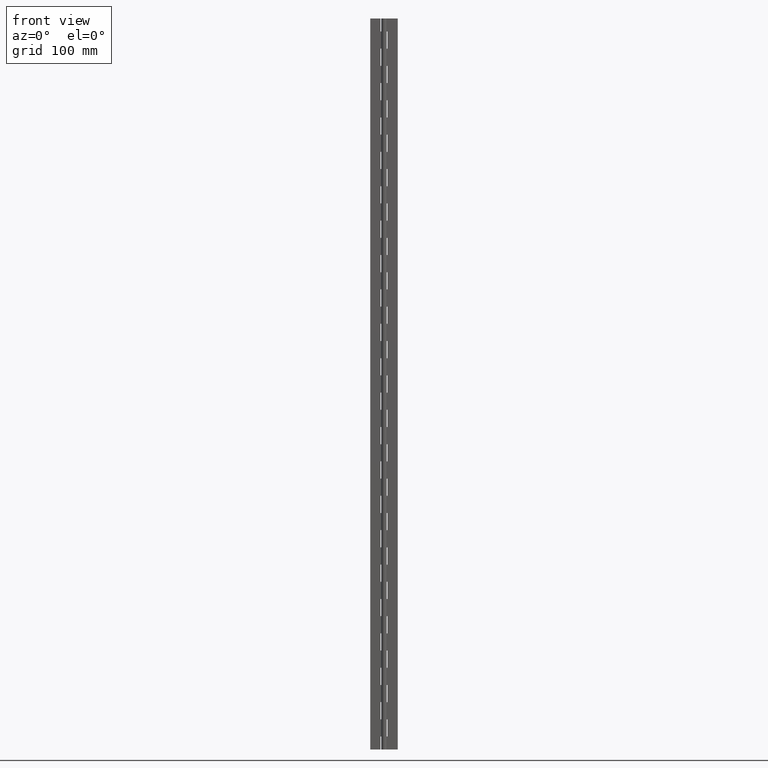
[diagram: clean part render]
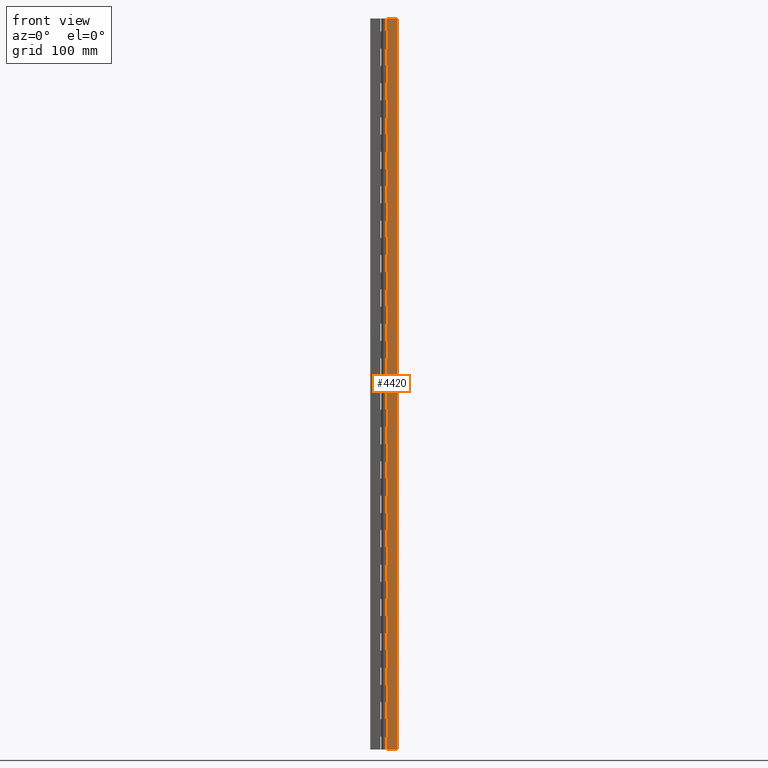
[diagram: same view with one face highlighted and labeled with its STEP entity id]
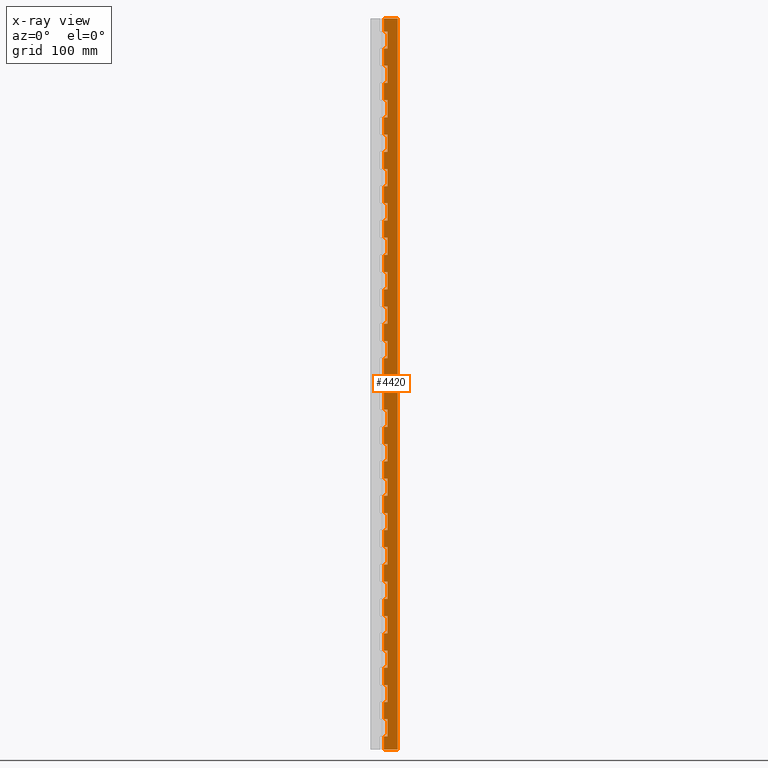
[diagram: x-ray of the same camera — body ghosted, the highlighted face saturated]
A machine part, front view. The second image highlights one B-rep face of the part: STEP entity #4420.
The next image is the same camera in x-ray: the body ghosted, the highlighted face saturated — about 0% of this face is hidden behind the body in this view.
In plain terms, the highlighted face is a freeform B-spline surface patch.
Its self-contained STEP definition (entity closure, byte-faithful):
#330=CARTESIAN_POINT('',(0.0,1.750000000000000,15.000022000000049));
#331=VERTEX_POINT('',#330);
#351=CARTESIAN_POINT('',(4.0,1.750000000000030,15.000022000000049));
#352=VERTEX_POINT('',#351);
#353=CARTESIAN_POINT('',(0.0,1.750000000000000,15.000022000000049));
#354=CARTESIAN_POINT('',(4.0,1.750000000000030,15.000022000000049));
#355=QUASI_UNIFORM_CURVE('',1,(#353,#354),.UNSPECIFIED.,.F.,.U.);
#356=EDGE_CURVE('',#331,#352,#355,.T.);
#378=CARTESIAN_POINT('',(4.0,1.750000000000030,35.000022000000087));
#379=VERTEX_POINT('',#378);
#380=CARTESIAN_POINT('',(4.0,1.750000000000030,15.000022000000049));
#381=CARTESIAN_POINT('',(4.0,1.750000000000030,35.000022000000087));
#382=QUASI_UNIFORM_CURVE('',1,(#380,#381),.UNSPECIFIED.,.F.,.U.);
#383=EDGE_CURVE('',#352,#379,#382,.T.);
#435=CARTESIAN_POINT('',(0.0,1.750000000000000,35.000022000000087));
#436=VERTEX_POINT('',#435);
#437=CARTESIAN_POINT('',(4.0,1.750000000000030,35.000022000000087));
#438=CARTESIAN_POINT('',(0.0,1.750000000000000,35.000022000000087));
#439=QUASI_UNIFORM_CURVE('',1,(#437,#438),.UNSPECIFIED.,.F.,.U.);
#440=EDGE_CURVE('',#379,#436,#439,.T.);
#506=CARTESIAN_POINT('',(0.0,1.750000000000000,55.000022000000101));
#507=VERTEX_POINT('',#506);
#527=CARTESIAN_POINT('',(4.0,1.750000000000030,55.000022000000101));
#528=VERTEX_POINT('',#527);
#529=CARTESIAN_POINT('',(0.0,1.750000000000000,55.000022000000101));
#530=CARTESIAN_POINT('',(4.0,1.750000000000030,55.000022000000101));
#531=QUASI_UNIFORM_CURVE('',1,(#529,#530),.UNSPECIFIED.,.F.,.U.);
#532=EDGE_CURVE('',#507,#528,#531,.T.);
#554=CARTESIAN_POINT('',(4.0,1.750000000000030,75.000022000000101));
#555=VERTEX_POINT('',#554);
#556=CARTESIAN_POINT('',(4.0,1.750000000000030,55.000022000000101));
#557=CARTESIAN_POINT('',(4.0,1.750000000000030,75.000022000000101));
#558=QUASI_UNIFORM_CURVE('',1,(#556,#557),.UNSPECIFIED.,.F.,.U.);
#559=EDGE_CURVE('',#528,#555,#558,.T.);
#611=CARTESIAN_POINT('',(0.0,1.750000000000000,75.000022000000101));
#612=VERTEX_POINT('',#611);
#613=CARTESIAN_POINT('',(4.0,1.750000000000030,75.000022000000101));
#614=CARTESIAN_POINT('',(0.0,1.750000000000000,75.000022000000101));
#615=QUASI_UNIFORM_CURVE('',1,(#613,#614),.UNSPECIFIED.,.F.,.U.);
#616=EDGE_CURVE('',#555,#612,#615,.T.);
#682=CARTESIAN_POINT('',(0.0,1.750000000000000,95.000022000000101));
#683=VERTEX_POINT('',#682);
#703=CARTESIAN_POINT('',(4.0,1.750000000000030,95.000022000000101));
#704=VERTEX_POINT('',#703);
#705=CARTESIAN_POINT('',(0.0,1.750000000000000,95.000022000000101));
#706=CARTESIAN_POINT('',(4.0,1.750000000000030,95.000022000000101));
#707=QUASI_UNIFORM_CURVE('',1,(#705,#706),.UNSPECIFIED.,.F.,.U.);
#708=EDGE_CURVE('',#683,#704,#707,.T.);
#730=CARTESIAN_POINT('',(4.0,1.750000000000030,115.000022000000200));
#731=VERTEX_POINT('',#730);
#732=CARTESIAN_POINT('',(4.0,1.750000000000030,95.000022000000101));
#733=CARTESIAN_POINT('',(4.0,1.750000000000030,115.000022000000200));
#734=QUASI_UNIFORM_CURVE('',1,(#732,#733),.UNSPECIFIED.,.F.,.U.);
#735=EDGE_CURVE('',#704,#731,#734,.T.);
#787=CARTESIAN_POINT('',(0.0,1.750000000000000,115.000022000000200));
#788=VERTEX_POINT('',#787);
#789=CARTESIAN_POINT('',(4.0,1.750000000000030,115.000022000000200));
#790=CARTESIAN_POINT('',(0.0,1.750000000000000,115.000022000000200));
#791=QUASI_UNIFORM_CURVE('',1,(#789,#790),.UNSPECIFIED.,.F.,.U.);
#792=EDGE_CURVE('',#731,#788,#791,.T.);
#858=CARTESIAN_POINT('',(0.0,1.750000000000000,135.000022000000000));
#859=VERTEX_POINT('',#858);
#879=CARTESIAN_POINT('',(4.0,1.750000000000030,135.000022000000000));
#880=VERTEX_POINT('',#879);
#881=CARTESIAN_POINT('',(0.0,1.750000000000000,135.000022000000000));
#882=CARTESIAN_POINT('',(4.0,1.750000000000030,135.000022000000000));
#883=QUASI_UNIFORM_CURVE('',1,(#881,#882),.UNSPECIFIED.,.F.,.U.);
#884=EDGE_CURVE('',#859,#880,#883,.T.);
#906=CARTESIAN_POINT('',(4.0,1.750000000000030,155.000022000000000));
#907=VERTEX_POINT('',#906);
#908=CARTESIAN_POINT('',(4.0,1.750000000000030,135.000022000000000));
#909=CARTESIAN_POINT('',(4.0,1.750000000000030,155.000022000000000));
#910=QUASI_UNIFORM_CURVE('',1,(#908,#909),.UNSPECIFIED.,.F.,.U.);
#911=EDGE_CURVE('',#880,#907,#910,.T.);
#963=CARTESIAN_POINT('',(0.0,1.750000000000000,155.000022000000000));
#964=VERTEX_POINT('',#963);
#965=CARTESIAN_POINT('',(4.0,1.750000000000030,155.000022000000000));
#966=CARTESIAN_POINT('',(0.0,1.750000000000000,155.000022000000000));
#967=QUASI_UNIFORM_CURVE('',1,(#965,#966),.UNSPECIFIED.,.F.,.U.);
#968=EDGE_CURVE('',#907,#964,#967,.T.);
#1034=CARTESIAN_POINT('',(0.0,1.750000000000000,175.000022000000000));
#1035=VERTEX_POINT('',#1034);
#1055=CARTESIAN_POINT('',(4.0,1.750000000000030,175.000022000000000));
#1056=VERTEX_POINT('',#1055);
#1057=CARTESIAN_POINT('',(0.0,1.750000000000000,175.000022000000000));
#1058=CARTESIAN_POINT('',(4.0,1.750000000000030,175.000022000000000));
#1059=QUASI_UNIFORM_CURVE('',1,(#1057,#1058),.UNSPECIFIED.,.F.,.U.);
#1060=EDGE_CURVE('',#1035,#1056,#1059,.T.);
#1082=CARTESIAN_POINT('',(4.0,1.750000000000030,195.000022000000000));
#1083=VERTEX_POINT('',#1082);
#1084=CARTESIAN_POINT('',(4.0,1.750000000000030,175.000022000000000));
#1085=CARTESIAN_POINT('',(4.0,1.750000000000030,195.000022000000000));
#1086=QUASI_UNIFORM_CURVE('',1,(#1084,#1085),.UNSPECIFIED.,.F.,.U.);
#1087=EDGE_CURVE('',#1056,#1083,#1086,.T.);
#1139=CARTESIAN_POINT('',(0.0,1.750000000000000,195.000022000000000));
#1140=VERTEX_POINT('',#1139);
#1141=CARTESIAN_POINT('',(4.0,1.750000000000030,195.000022000000000));
#1142=CARTESIAN_POINT('',(0.0,1.750000000000000,195.000022000000000));
#1143=QUASI_UNIFORM_CURVE('',1,(#1141,#1142),.UNSPECIFIED.,.F.,.U.);
#1144=EDGE_CURVE('',#1083,#1140,#1143,.T.);
#1210=CARTESIAN_POINT('',(0.0,1.750000000000000,215.000022000000000));
#1211=VERTEX_POINT('',#1210);
#1231=CARTESIAN_POINT('',(4.0,1.750000000000030,215.000022000000000));
#1232=VERTEX_POINT('',#1231);
#1233=CARTESIAN_POINT('',(0.0,1.750000000000000,215.000022000000000));
#1234=CARTESIAN_POINT('',(4.0,1.750000000000030,215.000022000000000));
#1235=QUASI_UNIFORM_CURVE('',1,(#1233,#1234),.UNSPECIFIED.,.F.,.U.);
#1236=EDGE_CURVE('',#1211,#1232,#1235,.T.);
#1258=CARTESIAN_POINT('',(4.0,1.750000000000030,235.000022000000000));
#1259=VERTEX_POINT('',#1258);
#1260=CARTESIAN_POINT('',(4.0,1.750000000000030,215.000022000000000));
#1261=CARTESIAN_POINT('',(4.0,1.750000000000030,235.000022000000000));
#1262=QUASI_UNIFORM_CURVE('',1,(#1260,#1261),.UNSPECIFIED.,.F.,.U.);
#1263=EDGE_CURVE('',#1232,#1259,#1262,.T.);
#1315=CARTESIAN_POINT('',(0.0,1.750000000000000,235.000022000000000));
#1316=VERTEX_POINT('',#1315);
#1317=CARTESIAN_POINT('',(4.0,1.750000000000030,235.000022000000000));
#1318=CARTESIAN_POINT('',(0.0,1.750000000000000,235.000022000000000));
#1319=QUASI_UNIFORM_CURVE('',1,(#1317,#1318),.UNSPECIFIED.,.F.,.U.);
#1320=EDGE_CURVE('',#1259,#1316,#1319,.T.);
#1386=CARTESIAN_POINT('',(0.0,1.750000000000000,255.000022000000000));
#1387=VERTEX_POINT('',#1386);
#1407=CARTESIAN_POINT('',(4.0,1.750000000000030,255.000022000000000));
#1408=VERTEX_POINT('',#1407);
#1409=CARTESIAN_POINT('',(0.0,1.750000000000000,255.000022000000000));
#1410=CARTESIAN_POINT('',(4.0,1.750000000000030,255.000022000000000));
#1411=QUASI_UNIFORM_CURVE('',1,(#1409,#1410),.UNSPECIFIED.,.F.,.U.);
#1412=EDGE_CURVE('',#1387,#1408,#1411,.T.);
#1434=CARTESIAN_POINT('',(4.0,1.750000000000030,275.000022000000000));
#1435=VERTEX_POINT('',#1434);
#1436=CARTESIAN_POINT('',(4.0,1.750000000000030,255.000022000000000));
#1437=CARTESIAN_POINT('',(4.0,1.750000000000030,275.000022000000000));
#1438=QUASI_UNIFORM_CURVE('',1,(#1436,#1437),.UNSPECIFIED.,.F.,.U.);
#1439=EDGE_CURVE('',#1408,#1435,#1438,.T.);
#1491=CARTESIAN_POINT('',(0.0,1.750000000000000,275.000022000000000));
#1492=VERTEX_POINT('',#1491);
#1493=CARTESIAN_POINT('',(4.0,1.750000000000030,275.000022000000000));
#1494=CARTESIAN_POINT('',(0.0,1.750000000000000,275.000022000000000));
#1495=QUASI_UNIFORM_CURVE('',1,(#1493,#1494),.UNSPECIFIED.,.F.,.U.);
#1496=EDGE_CURVE('',#1435,#1492,#1495,.T.);
#1562=CARTESIAN_POINT('',(0.0,1.750000000000000,295.000021999999890));
#1563=VERTEX_POINT('',#1562);
#1583=CARTESIAN_POINT('',(4.0,1.750000000000030,295.000021999999890));
#1584=VERTEX_POINT('',#1583);
#1585=CARTESIAN_POINT('',(0.0,1.750000000000000,295.000021999999890));
#1586=CARTESIAN_POINT('',(4.0,1.750000000000030,295.000021999999890));
#1587=QUASI_UNIFORM_CURVE('',1,(#1585,#1586),.UNSPECIFIED.,.F.,.U.);
#1588=EDGE_CURVE('',#1563,#1584,#1587,.T.);
#1610=CARTESIAN_POINT('',(4.0,1.750000000000030,315.000022000000000));
#1611=VERTEX_POINT('',#1610);
#1612=CARTESIAN_POINT('',(4.0,1.750000000000030,295.000021999999890));
#1613=CARTESIAN_POINT('',(4.0,1.750000000000030,315.000022000000000));
#1614=QUASI_UNIFORM_CURVE('',1,(#1612,#1613),.UNSPECIFIED.,.F.,.U.);
#1615=EDGE_CURVE('',#1584,#1611,#1614,.T.);
#1667=CARTESIAN_POINT('',(0.0,1.750000000000000,315.000022000000000));
#1668=VERTEX_POINT('',#1667);
#1669=CARTESIAN_POINT('',(4.0,1.750000000000030,315.000022000000000));
#1670=CARTESIAN_POINT('',(0.0,1.750000000000000,315.000022000000000));
#1671=QUASI_UNIFORM_CURVE('',1,(#1669,#1670),.UNSPECIFIED.,.F.,.U.);
#1672=EDGE_CURVE('',#1611,#1668,#1671,.T.);
#1738=CARTESIAN_POINT('',(0.0,1.750000000000000,335.000022000000000));
#1739=VERTEX_POINT('',#1738);
#1759=CARTESIAN_POINT('',(4.0,1.750000000000030,335.000022000000000));
#1760=VERTEX_POINT('',#1759);
#1761=CARTESIAN_POINT('',(0.0,1.750000000000000,335.000022000000000));
#1762=CARTESIAN_POINT('',(4.0,1.750000000000030,335.000022000000000));
#1763=QUASI_UNIFORM_CURVE('',1,(#1761,#1762),.UNSPECIFIED.,.F.,.U.);
#1764=EDGE_CURVE('',#1739,#1760,#1763,.T.);
#1786=CARTESIAN_POINT('',(4.0,1.750000000000030,355.000022000000000));
#1787=VERTEX_POINT('',#1786);
#1788=CARTESIAN_POINT('',(4.0,1.750000000000030,335.000022000000000));
#1789=CARTESIAN_POINT('',(4.0,1.750000000000030,355.000022000000000));
#1790=QUASI_UNIFORM_CURVE('',1,(#1788,#1789),.UNSPECIFIED.,.F.,.U.);
#1791=EDGE_CURVE('',#1760,#1787,#1790,.T.);
#1843=CARTESIAN_POINT('',(0.0,1.750000000000000,355.000022000000000));
#1844=VERTEX_POINT('',#1843);
#1845=CARTESIAN_POINT('',(4.0,1.750000000000030,355.000022000000000));
#1846=CARTESIAN_POINT('',(0.0,1.750000000000000,355.000022000000000));
#1847=QUASI_UNIFORM_CURVE('',1,(#1845,#1846),.UNSPECIFIED.,.F.,.U.);
#1848=EDGE_CURVE('',#1787,#1844,#1847,.T.);
#1914=CARTESIAN_POINT('',(0.0,1.750000000000000,375.000022000000000));
#1915=VERTEX_POINT('',#1914);
#1935=CARTESIAN_POINT('',(4.0,1.750000000000030,375.000022000000000));
#1936=VERTEX_POINT('',#1935);
#1937=CARTESIAN_POINT('',(0.0,1.750000000000000,375.000022000000000));
#1938=CARTESIAN_POINT('',(4.0,1.750000000000030,375.000022000000000));
#1939=QUASI_UNIFORM_CURVE('',1,(#1937,#1938),.UNSPECIFIED.,.F.,.U.);
#1940=EDGE_CURVE('',#1915,#1936,#1939,.T.);
#1962=CARTESIAN_POINT('',(4.0,1.750000000000030,395.000022000000000));
#1963=VERTEX_POINT('',#1962);
#1964=CARTESIAN_POINT('',(4.0,1.750000000000030,375.000022000000000));
#1965=CARTESIAN_POINT('',(4.0,1.750000000000030,395.000022000000000));
#1966=QUASI_UNIFORM_CURVE('',1,(#1964,#1965),.UNSPECIFIED.,.F.,.U.);
#1967=EDGE_CURVE('',#1936,#1963,#1966,.T.);
#2019=CARTESIAN_POINT('',(0.0,1.750000000000000,395.000022000000000));
#2020=VERTEX_POINT('',#2019);
#2021=CARTESIAN_POINT('',(4.0,1.750000000000030,395.000022000000000));
#2022=CARTESIAN_POINT('',(0.0,1.750000000000000,395.000022000000000));
#2023=QUASI_UNIFORM_CURVE('',1,(#2021,#2022),.UNSPECIFIED.,.F.,.U.);
#2024=EDGE_CURVE('',#1963,#2020,#2023,.T.);
#2090=CARTESIAN_POINT('',(0.0,1.750000000000000,415.000022000000000));
#2091=VERTEX_POINT('',#2090);
#2111=CARTESIAN_POINT('',(4.0,1.750000000000030,415.000022000000000));
#2112=VERTEX_POINT('',#2111);
#2113=CARTESIAN_POINT('',(0.0,1.750000000000000,415.000022000000000));
#2114=CARTESIAN_POINT('',(4.0,1.750000000000030,415.000022000000000));
#2115=QUASI_UNIFORM_CURVE('',1,(#2113,#2114),.UNSPECIFIED.,.F.,.U.);
#2116=EDGE_CURVE('',#2091,#2112,#2115,.T.);
#2138=CARTESIAN_POINT('',(4.0,1.750000000000030,435.000022000000000));
#2139=VERTEX_POINT('',#2138);
#2140=CARTESIAN_POINT('',(4.0,1.750000000000030,415.000022000000000));
#2141=CARTESIAN_POINT('',(4.0,1.750000000000030,435.000022000000000));
#2142=QUASI_UNIFORM_CURVE('',1,(#2140,#2141),.UNSPECIFIED.,.F.,.U.);
#2143=EDGE_CURVE('',#2112,#2139,#2142,.T.);
#2195=CARTESIAN_POINT('',(0.0,1.750000000000000,435.000022000000000));
#2196=VERTEX_POINT('',#2195);
#2197=CARTESIAN_POINT('',(4.0,1.750000000000030,435.000022000000000));
#2198=CARTESIAN_POINT('',(0.0,1.750000000000000,435.000022000000000));
#2199=QUASI_UNIFORM_CURVE('',1,(#2197,#2198),.UNSPECIFIED.,.F.,.U.);
#2200=EDGE_CURVE('',#2139,#2196,#2199,.T.);
#2266=CARTESIAN_POINT('',(0.0,1.750000000000000,455.000022000000000));
#2267=VERTEX_POINT('',#2266);
#2287=CARTESIAN_POINT('',(4.0,1.750000000000030,455.000022000000000));
#2288=VERTEX_POINT('',#2287);
#2289=CARTESIAN_POINT('',(0.0,1.750000000000000,455.000022000000000));
#2290=CARTESIAN_POINT('',(4.0,1.750000000000030,455.000022000000000));
#2291=QUASI_UNIFORM_CURVE('',1,(#2289,#2290),.UNSPECIFIED.,.F.,.U.);
#2292=EDGE_CURVE('',#2267,#2288,#2291,.T.);
#2314=CARTESIAN_POINT('',(4.0,1.750000000000030,475.000022000000000));
#2315=VERTEX_POINT('',#2314);
#2316=CARTESIAN_POINT('',(4.0,1.750000000000030,455.000022000000000));
#2317=CARTESIAN_POINT('',(4.0,1.750000000000030,475.000022000000000));
#2318=QUASI_UNIFORM_CURVE('',1,(#2316,#2317),.UNSPECIFIED.,.F.,.U.);
#2319=EDGE_CURVE('',#2288,#2315,#2318,.T.);
#2371=CARTESIAN_POINT('',(0.0,1.750000000000000,475.000022000000000));
#2372=VERTEX_POINT('',#2371);
#2373=CARTESIAN_POINT('',(4.0,1.750000000000030,475.000022000000000));
#2374=CARTESIAN_POINT('',(0.0,1.750000000000000,475.000022000000000));
#2375=QUASI_UNIFORM_CURVE('',1,(#2373,#2374),.UNSPECIFIED.,.F.,.U.);
#2376=EDGE_CURVE('',#2315,#2372,#2375,.T.);
#2442=CARTESIAN_POINT('',(0.0,1.750000000000000,495.000022000000000));
#2443=VERTEX_POINT('',#2442);
#2463=CARTESIAN_POINT('',(4.0,1.750000000000030,495.000022000000000));
#2464=VERTEX_POINT('',#2463);
#2465=CARTESIAN_POINT('',(0.0,1.750000000000000,495.000022000000000));
#2466=CARTESIAN_POINT('',(4.0,1.750000000000030,495.000022000000000));
#2467=QUASI_UNIFORM_CURVE('',1,(#2465,#2466),.UNSPECIFIED.,.F.,.U.);
#2468=EDGE_CURVE('',#2443,#2464,#2467,.T.);
#2490=CARTESIAN_POINT('',(4.0,1.750000000000030,515.000021999999940));
#2491=VERTEX_POINT('',#2490);
#2492=CARTESIAN_POINT('',(4.0,1.750000000000030,495.000022000000000));
#2493=CARTESIAN_POINT('',(4.0,1.750000000000030,515.000021999999940));
#2494=QUASI_UNIFORM_CURVE('',1,(#2492,#2493),.UNSPECIFIED.,.F.,.U.);
#2495=EDGE_CURVE('',#2464,#2491,#2494,.T.);
#2547=CARTESIAN_POINT('',(0.0,1.750000000000000,515.000021999999940));
#2548=VERTEX_POINT('',#2547);
#2549=CARTESIAN_POINT('',(4.0,1.750000000000030,515.000021999999940));
#2550=CARTESIAN_POINT('',(0.0,1.750000000000000,515.000021999999940));
#2551=QUASI_UNIFORM_CURVE('',1,(#2549,#2550),.UNSPECIFIED.,.F.,.U.);
#2552=EDGE_CURVE('',#2491,#2548,#2551,.T.);
#2618=CARTESIAN_POINT('',(0.0,1.750000000000000,535.000021999999940));
#2619=VERTEX_POINT('',#2618);
#2639=CARTESIAN_POINT('',(4.0,1.750000000000030,535.000021999999940));
#2640=VERTEX_POINT('',#2639);
#2641=CARTESIAN_POINT('',(0.0,1.750000000000000,535.000021999999940));
#2642=CARTESIAN_POINT('',(4.0,1.750000000000030,535.000021999999940));
#2643=QUASI_UNIFORM_CURVE('',1,(#2641,#2642),.UNSPECIFIED.,.F.,.U.);
#2644=EDGE_CURVE('',#2619,#2640,#2643,.T.);
#2666=CARTESIAN_POINT('',(4.0,1.750000000000030,555.000021999999940));
#2667=VERTEX_POINT('',#2666);
#2668=CARTESIAN_POINT('',(4.0,1.750000000000030,535.000021999999940));
#2669=CARTESIAN_POINT('',(4.0,1.750000000000030,555.000021999999940));
#2670=QUASI_UNIFORM_CURVE('',1,(#2668,#2669),.UNSPECIFIED.,.F.,.U.);
#2671=EDGE_CURVE('',#2640,#2667,#2670,.T.);
#2723=CARTESIAN_POINT('',(0.0,1.750000000000000,555.000021999999940));
#2724=VERTEX_POINT('',#2723);
#2725=CARTESIAN_POINT('',(4.0,1.750000000000030,555.000021999999940));
#2726=CARTESIAN_POINT('',(0.0,1.750000000000000,555.000021999999940));
#2727=QUASI_UNIFORM_CURVE('',1,(#2725,#2726),.UNSPECIFIED.,.F.,.U.);
#2728=EDGE_CURVE('',#2667,#2724,#2727,.T.);
#2794=CARTESIAN_POINT('',(0.0,1.750000000000000,575.000021999999940));
#2795=VERTEX_POINT('',#2794);
#2815=CARTESIAN_POINT('',(4.0,1.750000000000030,575.000021999999940));
#2816=VERTEX_POINT('',#2815);
#2817=CARTESIAN_POINT('',(0.0,1.750000000000000,575.000021999999940));
#2818=CARTESIAN_POINT('',(4.0,1.750000000000030,575.000021999999940));
#2819=QUASI_UNIFORM_CURVE('',1,(#2817,#2818),.UNSPECIFIED.,.F.,.U.);
#2820=EDGE_CURVE('',#2795,#2816,#2819,.T.);
#2842=CARTESIAN_POINT('',(4.0,1.750000000000030,595.000022000000060));
#2843=VERTEX_POINT('',#2842);
#2844=CARTESIAN_POINT('',(4.0,1.750000000000030,575.000021999999940));
#2845=CARTESIAN_POINT('',(4.0,1.750000000000030,595.000022000000060));
#2846=QUASI_UNIFORM_CURVE('',1,(#2844,#2845),.UNSPECIFIED.,.F.,.U.);
#2847=EDGE_CURVE('',#2816,#2843,#2846,.T.);
#2899=CARTESIAN_POINT('',(0.0,1.750000000000000,595.000022000000060));
#2900=VERTEX_POINT('',#2899);
#2901=CARTESIAN_POINT('',(4.0,1.750000000000030,595.000022000000060));
#2902=CARTESIAN_POINT('',(0.0,1.750000000000000,595.000022000000060));
#2903=QUASI_UNIFORM_CURVE('',1,(#2901,#2902),.UNSPECIFIED.,.F.,.U.);
#2904=EDGE_CURVE('',#2843,#2900,#2903,.T.);
#2970=CARTESIAN_POINT('',(0.0,1.750000000000000,615.000022000000060));
#2971=VERTEX_POINT('',#2970);
#2991=CARTESIAN_POINT('',(4.0,1.750000000000030,615.000022000000060));
#2992=VERTEX_POINT('',#2991);
#2993=CARTESIAN_POINT('',(0.0,1.750000000000000,615.000022000000060));
#2994=CARTESIAN_POINT('',(4.0,1.750000000000030,615.000022000000060));
#2995=QUASI_UNIFORM_CURVE('',1,(#2993,#2994),.UNSPECIFIED.,.F.,.U.);
#2996=EDGE_CURVE('',#2971,#2992,#2995,.T.);
#3018=CARTESIAN_POINT('',(4.0,1.750000000000030,635.000022000000060));
#3019=VERTEX_POINT('',#3018);
#3020=CARTESIAN_POINT('',(4.0,1.750000000000030,615.000022000000060));
#3021=CARTESIAN_POINT('',(4.0,1.750000000000030,635.000022000000060));
#3022=QUASI_UNIFORM_CURVE('',1,(#3020,#3021),.UNSPECIFIED.,.F.,.U.);
#3023=EDGE_CURVE('',#2992,#3019,#3022,.T.);
#3075=CARTESIAN_POINT('',(0.0,1.750000000000000,635.000022000000060));
#3076=VERTEX_POINT('',#3075);
#3077=CARTESIAN_POINT('',(4.0,1.750000000000030,635.000022000000060));
#3078=CARTESIAN_POINT('',(0.0,1.750000000000000,635.000022000000060));
#3079=QUASI_UNIFORM_CURVE('',1,(#3077,#3078),.UNSPECIFIED.,.F.,.U.);
#3080=EDGE_CURVE('',#3019,#3076,#3079,.T.);
#3146=CARTESIAN_POINT('',(0.0,1.750000000000000,655.000021999999940));
#3147=VERTEX_POINT('',#3146);
#3167=CARTESIAN_POINT('',(4.0,1.750000000000030,655.000021999999940));
#3168=VERTEX_POINT('',#3167);
#3169=CARTESIAN_POINT('',(0.0,1.750000000000000,655.000021999999940));
#3170=CARTESIAN_POINT('',(4.0,1.750000000000030,655.000021999999940));
#3171=QUASI_UNIFORM_CURVE('',1,(#3169,#3170),.UNSPECIFIED.,.F.,.U.);
#3172=EDGE_CURVE('',#3147,#3168,#3171,.T.);
#3194=CARTESIAN_POINT('',(4.0,1.750000000000030,675.000021999999940));
#3195=VERTEX_POINT('',#3194);
#3196=CARTESIAN_POINT('',(4.0,1.750000000000030,655.000021999999940));
#3197=CARTESIAN_POINT('',(4.0,1.750000000000030,675.000021999999940));
#3198=QUASI_UNIFORM_CURVE('',1,(#3196,#3197),.UNSPECIFIED.,.F.,.U.);
#3199=EDGE_CURVE('',#3168,#3195,#3198,.T.);
#3251=CARTESIAN_POINT('',(0.0,1.750000000000000,675.000021999999940));
#3252=VERTEX_POINT('',#3251);
#3253=CARTESIAN_POINT('',(4.0,1.750000000000030,675.000021999999940));
#3254=CARTESIAN_POINT('',(0.0,1.750000000000000,675.000021999999940));
#3255=QUASI_UNIFORM_CURVE('',1,(#3253,#3254),.UNSPECIFIED.,.F.,.U.);
#3256=EDGE_CURVE('',#3195,#3252,#3255,.T.);
#3322=CARTESIAN_POINT('',(0.0,1.750000000000000,695.000021999999940));
#3323=VERTEX_POINT('',#3322);
#3343=CARTESIAN_POINT('',(4.0,1.750000000000030,695.000021999999940));
#3344=VERTEX_POINT('',#3343);
#3345=CARTESIAN_POINT('',(0.0,1.750000000000000,695.000021999999940));
#3346=CARTESIAN_POINT('',(4.0,1.750000000000030,695.000021999999940));
#3347=QUASI_UNIFORM_CURVE('',1,(#3345,#3346),.UNSPECIFIED.,.F.,.U.);
#3348=EDGE_CURVE('',#3323,#3344,#3347,.T.);
#3370=CARTESIAN_POINT('',(4.0,1.750000000000030,715.000022000000060));
#3371=VERTEX_POINT('',#3370);
#3372=CARTESIAN_POINT('',(4.0,1.750000000000030,695.000021999999940));
#3373=CARTESIAN_POINT('',(4.0,1.750000000000030,715.000022000000060));
#3374=QUASI_UNIFORM_CURVE('',1,(#3372,#3373),.UNSPECIFIED.,.F.,.U.);
#3375=EDGE_CURVE('',#3344,#3371,#3374,.T.);
#3427=CARTESIAN_POINT('',(0.0,1.750000000000000,715.000022000000060));
#3428=VERTEX_POINT('',#3427);
#3429=CARTESIAN_POINT('',(4.0,1.750000000000030,715.000022000000060));
#3430=CARTESIAN_POINT('',(0.0,1.750000000000000,715.000022000000060));
#3431=QUASI_UNIFORM_CURVE('',1,(#3429,#3430),.UNSPECIFIED.,.F.,.U.);
#3432=EDGE_CURVE('',#3371,#3428,#3431,.T.);
#3498=CARTESIAN_POINT('',(0.0,1.750000000000000,735.000022000000060));
#3499=VERTEX_POINT('',#3498);
#3519=CARTESIAN_POINT('',(4.0,1.750000000000030,735.000022000000060));
#3520=VERTEX_POINT('',#3519);
#3521=CARTESIAN_POINT('',(0.0,1.750000000000000,735.000022000000060));
#3522=CARTESIAN_POINT('',(4.0,1.750000000000030,735.000022000000060));
#3523=QUASI_UNIFORM_CURVE('',1,(#3521,#3522),.UNSPECIFIED.,.F.,.U.);
#3524=EDGE_CURVE('',#3499,#3520,#3523,.T.);
#3546=CARTESIAN_POINT('',(4.0,1.750000000000030,755.000022000000060));
#3547=VERTEX_POINT('',#3546);
#3548=CARTESIAN_POINT('',(4.0,1.750000000000030,735.000022000000060));
#3549=CARTESIAN_POINT('',(4.0,1.750000000000030,755.000022000000060));
#3550=QUASI_UNIFORM_CURVE('',1,(#3548,#3549),.UNSPECIFIED.,.F.,.U.);
#3551=EDGE_CURVE('',#3520,#3547,#3550,.T.);
#3603=CARTESIAN_POINT('',(0.0,1.750000000000000,755.000022000000060));
#3604=VERTEX_POINT('',#3603);
#3605=CARTESIAN_POINT('',(4.0,1.750000000000030,755.000022000000060));
#3606=CARTESIAN_POINT('',(0.0,1.750000000000000,755.000022000000060));
#3607=QUASI_UNIFORM_CURVE('',1,(#3605,#3606),.UNSPECIFIED.,.F.,.U.);
#3608=EDGE_CURVE('',#3547,#3604,#3607,.T.);
#3674=CARTESIAN_POINT('',(0.0,1.750000000000000,775.000021999999940));
#3675=VERTEX_POINT('',#3674);
#3695=CARTESIAN_POINT('',(4.0,1.750000000000030,775.000021999999940));
#3696=VERTEX_POINT('',#3695);
#3697=CARTESIAN_POINT('',(0.0,1.750000000000000,775.000021999999940));
#3698=CARTESIAN_POINT('',(4.0,1.750000000000030,775.000021999999940));
#3699=QUASI_UNIFORM_CURVE('',1,(#3697,#3698),.UNSPECIFIED.,.F.,.U.);
#3700=EDGE_CURVE('',#3675,#3696,#3699,.T.);
#3722=CARTESIAN_POINT('',(4.0,1.750000000000030,795.000021999999940));
#3723=VERTEX_POINT('',#3722);
#3724=CARTESIAN_POINT('',(4.0,1.750000000000030,775.000021999999940));
#3725=CARTESIAN_POINT('',(4.0,1.750000000000030,795.000021999999940));
#3726=QUASI_UNIFORM_CURVE('',1,(#3724,#3725),.UNSPECIFIED.,.F.,.U.);
#3727=EDGE_CURVE('',#3696,#3723,#3726,.T.);
#3779=CARTESIAN_POINT('',(0.0,1.750000000000000,795.000021999999940));
#3780=VERTEX_POINT('',#3779);
#3781=CARTESIAN_POINT('',(4.0,1.750000000000030,795.000021999999940));
#3782=CARTESIAN_POINT('',(0.0,1.750000000000000,795.000021999999940));
#3783=QUASI_UNIFORM_CURVE('',1,(#3781,#3782),.UNSPECIFIED.,.F.,.U.);
#3784=EDGE_CURVE('',#3723,#3780,#3783,.T.);
#3820=CARTESIAN_POINT('',(0.0,1.750000000000000,815.000021999999940));
#3821=VERTEX_POINT('',#3820);
#3822=CARTESIAN_POINT('',(4.0,1.750000000000030,815.000021999999940));
#3823=VERTEX_POINT('',#3822);
#3824=CARTESIAN_POINT('',(0.0,1.750000000000000,815.000021999999940));
#3825=CARTESIAN_POINT('',(4.0,1.750000000000030,815.000021999999940));
#3826=QUASI_UNIFORM_CURVE('',1,(#3824,#3825),.UNSPECIFIED.,.F.,.U.);
#3827=EDGE_CURVE('',#3821,#3823,#3826,.T.);
#3898=CARTESIAN_POINT('',(4.0,1.750000000000030,835.000022000000060));
#3899=VERTEX_POINT('',#3898);
#3900=CARTESIAN_POINT('',(4.0,1.750000000000030,815.000021999999940));
#3901=CARTESIAN_POINT('',(4.0,1.750000000000030,835.000022000000060));
#3902=QUASI_UNIFORM_CURVE('',1,(#3900,#3901),.UNSPECIFIED.,.F.,.U.);
#3903=EDGE_CURVE('',#3823,#3899,#3902,.T.);
#3926=CARTESIAN_POINT('',(0.0,1.750000000000000,835.000022000000060));
#3927=VERTEX_POINT('',#3926);
#3928=CARTESIAN_POINT('',(4.0,1.750000000000030,835.000022000000060));
#3929=CARTESIAN_POINT('',(0.0,1.750000000000000,835.000022000000060));
#3930=QUASI_UNIFORM_CURVE('',1,(#3928,#3929),.UNSPECIFIED.,.F.,.U.);
#3931=EDGE_CURVE('',#3899,#3927,#3930,.T.);
#4005=CARTESIAN_POINT('',(16.0,1.750000000000000,0.0));
#4006=VERTEX_POINT('',#4005);
#4012=CARTESIAN_POINT('',(0.0,1.750000000000000,0.0));
#4013=VERTEX_POINT('',#4012);
#4014=CARTESIAN_POINT('',(16.0,1.750000000000000,0.0));
#4015=CARTESIAN_POINT('',(0.0,1.750000000000000,0.0));
#4016=QUASI_UNIFORM_CURVE('',1,(#4014,#4015),.UNSPECIFIED.,.F.,.U.);
#4017=EDGE_CURVE('',#4006,#4013,#4016,.T.);
#4111=CARTESIAN_POINT('',(0.0,1.750000000000000,850.000022000000060));
#4112=VERTEX_POINT('',#4111);
#4132=CARTESIAN_POINT('',(16.0,1.750000000000000,850.000022000000060));
#4133=VERTEX_POINT('',#4132);
#4134=CARTESIAN_POINT('',(16.0,1.750000000000000,850.000022000000060));
#4135=CARTESIAN_POINT('',(0.0,1.750000000000000,850.000022000000060));
#4136=QUASI_UNIFORM_CURVE('',1,(#4134,#4135),.UNSPECIFIED.,.F.,.U.);
#4137=EDGE_CURVE('',#4133,#4112,#4136,.T.);
#4226=CARTESIAN_POINT('',(0.0,1.750000000000000,15.000022000000049));
#4227=CARTESIAN_POINT('',(0.0,1.750000000000000,0.0));
#4228=QUASI_UNIFORM_CURVE('',1,(#4226,#4227),.UNSPECIFIED.,.F.,.U.);
#4229=EDGE_CURVE('',#331,#4013,#4228,.T.);
#4237=CARTESIAN_POINT('',(-0.799199968988897,1.750000000000000,892.457497513859040));
#4238=CARTESIAN_POINT('',(-0.799199968988897,1.750000000000000,-42.457521111413350));
#4239=CARTESIAN_POINT('',(16.799200398142339,1.750000000000000,892.457497513859040));
#4240=CARTESIAN_POINT('',(16.799200398142339,1.750000000000000,-42.457521111413350));
#4241=B_SPLINE_SURFACE_WITH_KNOTS('',1,1,((#4237,#4239),(#4238,#4240)),.UNSPECIFIED.,.F.,.F.,.U.,(2,2),(2,2),(0.0,934.915018625272410),(0.0,17.598400367131241),.UNSPECIFIED.);
#4242=ORIENTED_EDGE('',*,*,#440,.F.);
#4243=ORIENTED_EDGE('',*,*,#383,.F.);
#4244=ORIENTED_EDGE('',*,*,#356,.F.);
#4245=ORIENTED_EDGE('',*,*,#4229,.T.);
#4246=ORIENTED_EDGE('',*,*,#4017,.F.);
#4247=CARTESIAN_POINT('',(16.0,1.750000000000000,850.000022000000060));
#4248=CARTESIAN_POINT('',(16.0,1.750000000000000,0.0));
#4249=QUASI_UNIFORM_CURVE('',1,(#4247,#4248),.UNSPECIFIED.,.F.,.U.);
#4250=EDGE_CURVE('',#4133,#4006,#4249,.T.);
#4251=ORIENTED_EDGE('',*,*,#4250,.F.);
#4252=ORIENTED_EDGE('',*,*,#4137,.T.);
#4253=CARTESIAN_POINT('',(0.0,1.750000000000000,850.000022000000060));
#4254=CARTESIAN_POINT('',(0.0,1.750000000000000,835.000022000000060));
#4255=QUASI_UNIFORM_CURVE('',1,(#4253,#4254),.UNSPECIFIED.,.F.,.U.);
#4256=EDGE_CURVE('',#4112,#3927,#4255,.T.);
#4257=ORIENTED_EDGE('',*,*,#4256,.T.);
#4258=ORIENTED_EDGE('',*,*,#3931,.F.);
#4259=ORIENTED_EDGE('',*,*,#3903,.F.);
#4260=ORIENTED_EDGE('',*,*,#3827,.F.);
#4261=CARTESIAN_POINT('',(0.0,1.750000000000000,815.000021999999940));
#4262=CARTESIAN_POINT('',(0.0,1.750000000000000,795.000021999999940));
#4263=QUASI_UNIFORM_CURVE('',1,(#4261,#4262),.UNSPECIFIED.,.F.,.U.);
#4264=EDGE_CURVE('',#3821,#3780,#4263,.T.);
#4265=ORIENTED_EDGE('',*,*,#4264,.T.);
#4266=ORIENTED_EDGE('',*,*,#3784,.F.);
#4267=ORIENTED_EDGE('',*,*,#3727,.F.);
#4268=ORIENTED_EDGE('',*,*,#3700,.F.);
#4269=CARTESIAN_POINT('',(0.0,1.750000000000000,775.000021999999940));
#4270=CARTESIAN_POINT('',(0.0,1.750000000000000,755.000022000000060));
#4271=QUASI_UNIFORM_CURVE('',1,(#4269,#4270),.UNSPECIFIED.,.F.,.U.);
#4272=EDGE_CURVE('',#3675,#3604,#4271,.T.);
#4273=ORIENTED_EDGE('',*,*,#4272,.T.);
#4274=ORIENTED_EDGE('',*,*,#3608,.F.);
#4275=ORIENTED_EDGE('',*,*,#3551,.F.);
#4276=ORIENTED_EDGE('',*,*,#3524,.F.);
#4277=CARTESIAN_POINT('',(0.0,1.750000000000000,735.000022000000060));
#4278=CARTESIAN_POINT('',(0.0,1.750000000000000,715.000022000000060));
#4279=QUASI_UNIFORM_CURVE('',1,(#4277,#4278),.UNSPECIFIED.,.F.,.U.);
#4280=EDGE_CURVE('',#3499,#3428,#4279,.T.);
#4281=ORIENTED_EDGE('',*,*,#4280,.T.);
#4282=ORIENTED_EDGE('',*,*,#3432,.F.);
#4283=ORIENTED_EDGE('',*,*,#3375,.F.);
#4284=ORIENTED_EDGE('',*,*,#3348,.F.);
#4285=CARTESIAN_POINT('',(0.0,1.750000000000000,695.000021999999940));
#4286=CARTESIAN_POINT('',(0.0,1.750000000000000,675.000021999999940));
#4287=QUASI_UNIFORM_CURVE('',1,(#4285,#4286),.UNSPECIFIED.,.F.,.U.);
#4288=EDGE_CURVE('',#3323,#3252,#4287,.T.);
#4289=ORIENTED_EDGE('',*,*,#4288,.T.);
#4290=ORIENTED_EDGE('',*,*,#3256,.F.);
#4291=ORIENTED_EDGE('',*,*,#3199,.F.);
#4292=ORIENTED_EDGE('',*,*,#3172,.F.);
#4293=CARTESIAN_POINT('',(0.0,1.750000000000000,655.000021999999940));
#4294=CARTESIAN_POINT('',(0.0,1.750000000000000,635.000022000000060));
#4295=QUASI_UNIFORM_CURVE('',1,(#4293,#4294),.UNSPECIFIED.,.F.,.U.);
#4296=EDGE_CURVE('',#3147,#3076,#4295,.T.);
#4297=ORIENTED_EDGE('',*,*,#4296,.T.);
#4298=ORIENTED_EDGE('',*,*,#3080,.F.);
#4299=ORIENTED_EDGE('',*,*,#3023,.F.);
#4300=ORIENTED_EDGE('',*,*,#2996,.F.);
#4301=CARTESIAN_POINT('',(0.0,1.750000000000000,615.000022000000060));
#4302=CARTESIAN_POINT('',(0.0,1.750000000000000,595.000022000000060));
#4303=QUASI_UNIFORM_CURVE('',1,(#4301,#4302),.UNSPECIFIED.,.F.,.U.);
#4304=EDGE_CURVE('',#2971,#2900,#4303,.T.);
#4305=ORIENTED_EDGE('',*,*,#4304,.T.);
#4306=ORIENTED_EDGE('',*,*,#2904,.F.);
#4307=ORIENTED_EDGE('',*,*,#2847,.F.);
#4308=ORIENTED_EDGE('',*,*,#2820,.F.);
#4309=CARTESIAN_POINT('',(0.0,1.750000000000000,575.000021999999940));
#4310=CARTESIAN_POINT('',(0.0,1.750000000000000,555.000021999999940));
#4311=QUASI_UNIFORM_CURVE('',1,(#4309,#4310),.UNSPECIFIED.,.F.,.U.);
#4312=EDGE_CURVE('',#2795,#2724,#4311,.T.);
#4313=ORIENTED_EDGE('',*,*,#4312,.T.);
#4314=ORIENTED_EDGE('',*,*,#2728,.F.);
#4315=ORIENTED_EDGE('',*,*,#2671,.F.);
#4316=ORIENTED_EDGE('',*,*,#2644,.F.);
#4317=CARTESIAN_POINT('',(0.0,1.750000000000000,535.000021999999940));
#4318=CARTESIAN_POINT('',(0.0,1.750000000000000,515.000021999999940));
#4319=QUASI_UNIFORM_CURVE('',1,(#4317,#4318),.UNSPECIFIED.,.F.,.U.);
#4320=EDGE_CURVE('',#2619,#2548,#4319,.T.);
#4321=ORIENTED_EDGE('',*,*,#4320,.T.);
#4322=ORIENTED_EDGE('',*,*,#2552,.F.);
#4323=ORIENTED_EDGE('',*,*,#2495,.F.);
#4324=ORIENTED_EDGE('',*,*,#2468,.F.);
#4325=CARTESIAN_POINT('',(0.0,1.750000000000000,495.000022000000000));
#4326=CARTESIAN_POINT('',(0.0,1.750000000000000,475.000022000000000));
#4327=QUASI_UNIFORM_CURVE('',1,(#4325,#4326),.UNSPECIFIED.,.F.,.U.);
#4328=EDGE_CURVE('',#2443,#2372,#4327,.T.);
#4329=ORIENTED_EDGE('',*,*,#4328,.T.);
#4330=ORIENTED_EDGE('',*,*,#2376,.F.);
#4331=ORIENTED_EDGE('',*,*,#2319,.F.);
#4332=ORIENTED_EDGE('',*,*,#2292,.F.);
#4333=CARTESIAN_POINT('',(0.0,1.750000000000000,455.000022000000000));
#4334=CARTESIAN_POINT('',(0.0,1.750000000000000,435.000022000000000));
#4335=QUASI_UNIFORM_CURVE('',1,(#4333,#4334),.UNSPECIFIED.,.F.,.U.);
#4336=EDGE_CURVE('',#2267,#2196,#4335,.T.);
#4337=ORIENTED_EDGE('',*,*,#4336,.T.);
#4338=ORIENTED_EDGE('',*,*,#2200,.F.);
#4339=ORIENTED_EDGE('',*,*,#2143,.F.);
#4340=ORIENTED_EDGE('',*,*,#2116,.F.);
#4341=CARTESIAN_POINT('',(0.0,1.750000000000000,415.000022000000000));
#4342=CARTESIAN_POINT('',(0.0,1.750000000000000,395.000022000000000));
#4343=QUASI_UNIFORM_CURVE('',1,(#4341,#4342),.UNSPECIFIED.,.F.,.U.);
#4344=EDGE_CURVE('',#2091,#2020,#4343,.T.);
#4345=ORIENTED_EDGE('',*,*,#4344,.T.);
#4346=ORIENTED_EDGE('',*,*,#2024,.F.);
#4347=ORIENTED_EDGE('',*,*,#1967,.F.);
#4348=ORIENTED_EDGE('',*,*,#1940,.F.);
#4349=CARTESIAN_POINT('',(0.0,1.750000000000000,375.000022000000000));
#4350=CARTESIAN_POINT('',(0.0,1.750000000000000,355.000022000000000));
#4351=QUASI_UNIFORM_CURVE('',1,(#4349,#4350),.UNSPECIFIED.,.F.,.U.);
#4352=EDGE_CURVE('',#1915,#1844,#4351,.T.);
#4353=ORIENTED_EDGE('',*,*,#4352,.T.);
#4354=ORIENTED_EDGE('',*,*,#1848,.F.);
#4355=ORIENTED_EDGE('',*,*,#1791,.F.);
#4356=ORIENTED_EDGE('',*,*,#1764,.F.);
#4357=CARTESIAN_POINT('',(0.0,1.750000000000000,335.000022000000000));
#4358=CARTESIAN_POINT('',(0.0,1.750000000000000,315.000022000000000));
#4359=QUASI_UNIFORM_CURVE('',1,(#4357,#4358),.UNSPECIFIED.,.F.,.U.);
#4360=EDGE_CURVE('',#1739,#1668,#4359,.T.);
#4361=ORIENTED_EDGE('',*,*,#4360,.T.);
#4362=ORIENTED_EDGE('',*,*,#1672,.F.);
#4363=ORIENTED_EDGE('',*,*,#1615,.F.);
#4364=ORIENTED_EDGE('',*,*,#1588,.F.);
#4365=CARTESIAN_POINT('',(0.0,1.750000000000000,295.000021999999890));
#4366=CARTESIAN_POINT('',(0.0,1.750000000000000,275.000022000000000));
#4367=QUASI_UNIFORM_CURVE('',1,(#4365,#4366),.UNSPECIFIED.,.F.,.U.);
#4368=EDGE_CURVE('',#1563,#1492,#4367,.T.);
#4369=ORIENTED_EDGE('',*,*,#4368,.T.);
#4370=ORIENTED_EDGE('',*,*,#1496,.F.);
#4371=ORIENTED_EDGE('',*,*,#1439,.F.);
#4372=ORIENTED_EDGE('',*,*,#1412,.F.);
#4373=CARTESIAN_POINT('',(0.0,1.750000000000000,255.000022000000000));
#4374=CARTESIAN_POINT('',(0.0,1.750000000000000,235.000022000000000));
#4375=QUASI_UNIFORM_CURVE('',1,(#4373,#4374),.UNSPECIFIED.,.F.,.U.);
#4376=EDGE_CURVE('',#1387,#1316,#4375,.T.);
#4377=ORIENTED_EDGE('',*,*,#4376,.T.);
#4378=ORIENTED_EDGE('',*,*,#1320,.F.);
#4379=ORIENTED_EDGE('',*,*,#1263,.F.);
#4380=ORIENTED_EDGE('',*,*,#1236,.F.);
#4381=CARTESIAN_POINT('',(0.0,1.750000000000000,215.000022000000000));
#4382=CARTESIAN_POINT('',(0.0,1.750000000000000,195.000022000000000));
#4383=QUASI_UNIFORM_CURVE('',1,(#4381,#4382),.UNSPECIFIED.,.F.,.U.);
#4384=EDGE_CURVE('',#1211,#1140,#4383,.T.);
#4385=ORIENTED_EDGE('',*,*,#4384,.T.);
#4386=ORIENTED_EDGE('',*,*,#1144,.F.);
#4387=ORIENTED_EDGE('',*,*,#1087,.F.);
#4388=ORIENTED_EDGE('',*,*,#1060,.F.);
#4389=CARTESIAN_POINT('',(0.0,1.750000000000000,175.000022000000000));
#4390=CARTESIAN_POINT('',(0.0,1.750000000000000,155.000022000000000));
#4391=QUASI_UNIFORM_CURVE('',1,(#4389,#4390),.UNSPECIFIED.,.F.,.U.);
#4392=EDGE_CURVE('',#1035,#964,#4391,.T.);
#4393=ORIENTED_EDGE('',*,*,#4392,.T.);
#4394=ORIENTED_EDGE('',*,*,#968,.F.);
#4395=ORIENTED_EDGE('',*,*,#911,.F.);
#4396=ORIENTED_EDGE('',*,*,#884,.F.);
#4397=CARTESIAN_POINT('',(0.0,1.750000000000000,135.000022000000000));
#4398=CARTESIAN_POINT('',(0.0,1.750000000000000,115.000022000000200));
#4399=QUASI_UNIFORM_CURVE('',1,(#4397,#4398),.UNSPECIFIED.,.F.,.U.);
#4400=EDGE_CURVE('',#859,#788,#4399,.T.);
#4401=ORIENTED_EDGE('',*,*,#4400,.T.);
#4402=ORIENTED_EDGE('',*,*,#792,.F.);
#4403=ORIENTED_EDGE('',*,*,#735,.F.);
#4404=ORIENTED_EDGE('',*,*,#708,.F.);
#4405=CARTESIAN_POINT('',(0.0,1.750000000000000,95.000022000000101));
#4406=CARTESIAN_POINT('',(0.0,1.750000000000000,75.000022000000101));
#4407=QUASI_UNIFORM_CURVE('',1,(#4405,#4406),.UNSPECIFIED.,.F.,.U.);
#4408=EDGE_CURVE('',#683,#612,#4407,.T.);
#4409=ORIENTED_EDGE('',*,*,#4408,.T.);
#4410=ORIENTED_EDGE('',*,*,#616,.F.);
#4411=ORIENTED_EDGE('',*,*,#559,.F.);
#4412=ORIENTED_EDGE('',*,*,#532,.F.);
#4413=CARTESIAN_POINT('',(0.0,1.750000000000000,55.000022000000101));
#4414=CARTESIAN_POINT('',(0.0,1.750000000000000,35.000022000000087));
#4415=QUASI_UNIFORM_CURVE('',1,(#4413,#4414),.UNSPECIFIED.,.F.,.U.);
#4416=EDGE_CURVE('',#507,#436,#4415,.T.);
#4417=ORIENTED_EDGE('',*,*,#4416,.T.);
#4418=EDGE_LOOP('',(#4242,#4243,#4244,#4245,#4246,#4251,#4252,#4257,#4258,#4259,#4260,#4265,#4266,#4267,#4268,#4273,#4274,#4275,#4276,#4281,#4282,#4283,#4284,#4289,#4290,#4291,#4292,#4297,#4298,#4299,#4300,#4305,#4306,#4307,#4308,#4313,#4314,#4315,#4316,#4321,#4322,#4323,#4324,#4329,#4330,#4331,#4332,#4337,#4338,#4339,#4340,#4345,#4346,#4347,#4348,#4353,#4354,#4355,#4356,#4361,#4362,#4363,#4364,#4369,#4370,#4371,#4372,#4377,#4378,#4379,#4380,#4385,#4386,#4387,#4388,#4393,#4394,#4395,#4396,#4401,#4402,#4403,#4404,#4409,#4410,#4411,#4412,#4417));
#4419=FACE_OUTER_BOUND('',#4418,.T.);
#4420=ADVANCED_FACE('',(#4419),#4241,.T.);